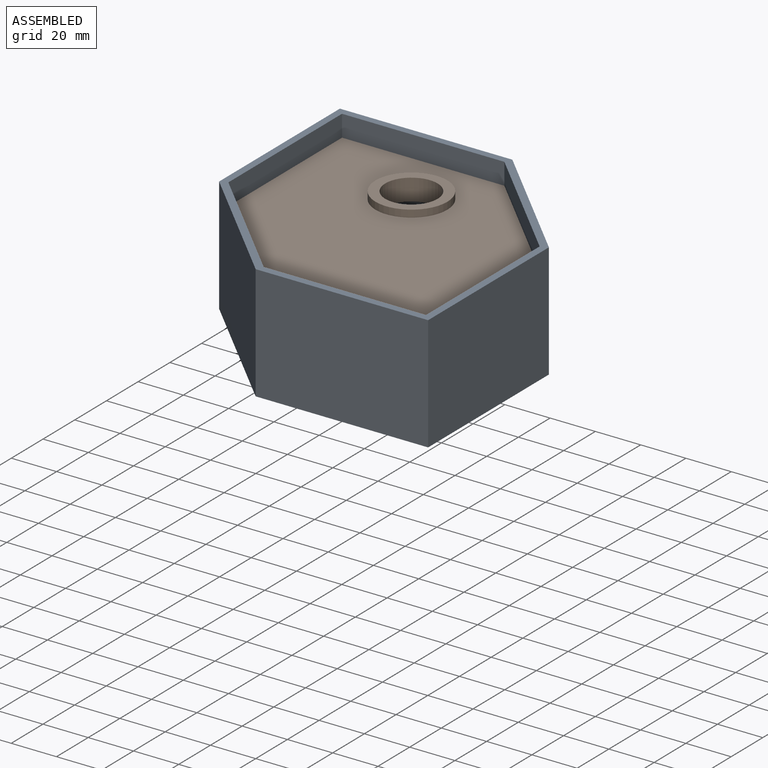
[diagram: assembled view]
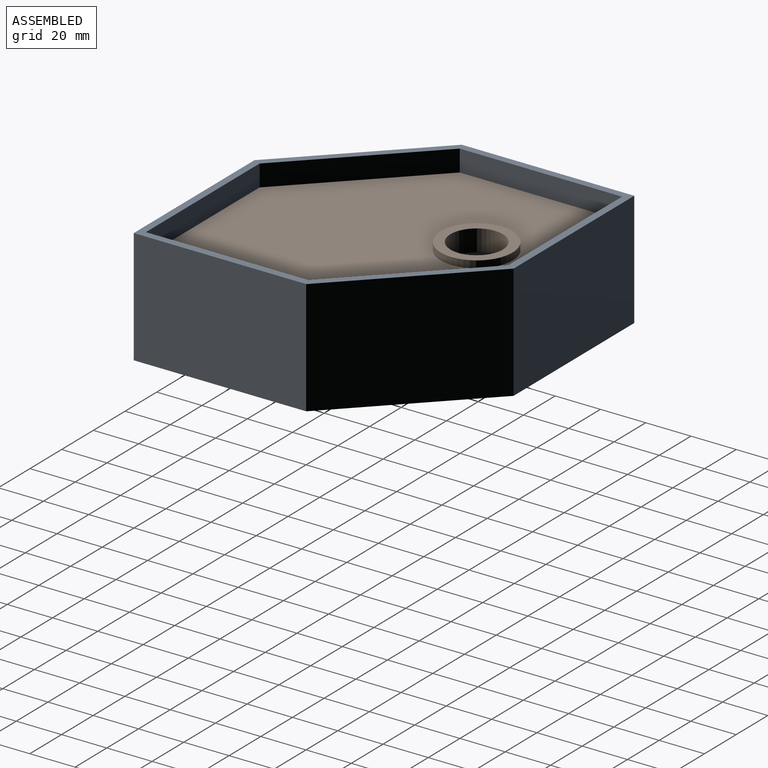
[diagram: assembled view, second angle]
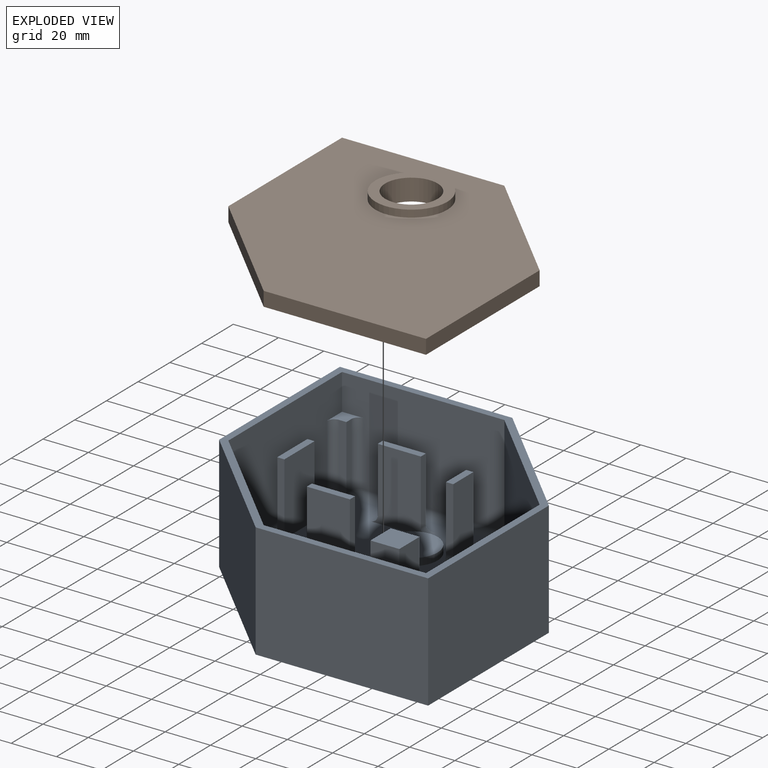
[diagram: exploded view]
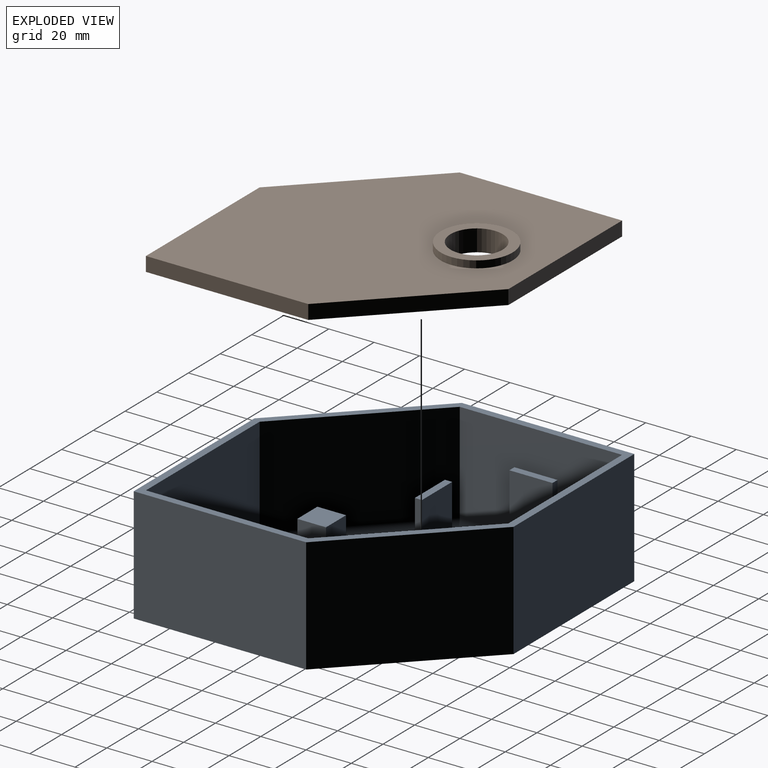
[diagram: exploded view, second angle]
ASSEMBLY  parts=2 mates=3
PART A: 82 faces, bbox 130.1x130.1x50.8 mm
  f0: plane 117.38x117.38mm, normal (0,0,1), area 9875.8mm2, adj f18,f22,f26,f31,f46,f50,f51,f52
  f1: plane 71.71x44.45mm, normal (1,0,0), area 2915.3mm2, adj f3,f11,f14,f45,f66,f68
  f2: plane 71.71x44.45mm, normal (-1,0,0), area 2915.3mm2, adj f3,f12,f13,f42,f48,f50
  f3: plane 130.08x130.08mm, normal (0,0,1), area 1414.7mm2, adj f1,f2,f4,f5,f6,f7,f8,f9
  f4: plane 53.88x53.88mm, normal (-0.71,-0.71,0), area 3871mm2, adj f3,f5,f9,f10
  f5: plane 76.2x50.8mm, normal (0,-1,0), area 3871mm2, adj f3,f4,f6,f10
  f6: plane 76.2x50.8mm, normal (1,0,0), area 3871mm2, adj f3,f5,f7,f10
  f7: plane 53.88x53.88mm, normal (0.71,0.71,0), area 3871mm2, adj f3,f6,f8,f10
  f8: plane 76.2x50.8mm, normal (0,1,0), area 3871mm2, adj f3,f7,f9,f10
  f9: plane 76.2x50.8mm, normal (-1,0,0), area 3871mm2, adj f3,f4,f8,f10
  f10: plane 130.08x130.08mm, normal (0,0,-1), area 14018mm2, adj f4,f5,f6,f7,f8,f9
  f11: plane 52.02x52.02mm, normal (0.71,0.71,0), area 3270.2mm2, adj f1,f3,f12,f64
  f12: plane 71.71x44.45mm, normal (0,1,0), area 2915.3mm2, adj f2,f3,f11,f42,f54,f59
  f13: plane 52.02x52.02mm, normal (-0.71,-0.71,0), area 3270.2mm2, adj f2,f3,f14,f52
  f14: plane 71.71x44.45mm, normal (0,-1,0), area 2915.3mm2, adj f1,f3,f13,f45,f55,f56
  f15: plane 28.58x3.18mm, normal (1,0,0), area 90.7mm2, adj f16,f18,f19,f79
  f16: plane 28.58x19.05mm, normal (0,1,0), area 544.4mm2, adj f15,f17,f19,f81
  f17: plane 28.58x3.18mm, normal (-1,0,0), area 90.7mm2, adj f16,f18,f19,f80
  f18: plane 31.75x25.4mm, normal (0,-1,0), area 609.2mm2, adj f0,f15,f17,f19,f79,f80
  f19: plane 19.05x3.18mm, normal (0,0,1), area 60.5mm2, adj f15,f16,f17,f18
  f20: plane 28.58x19.05mm, normal (0,-1,0), area 544.4mm2, adj f21,f23,f24,f77
  f21: plane 28.58x3.18mm, normal (1,0,0), area 90.7mm2, adj f20,f22,f24,f78
  f22: plane 31.75x25.4mm, normal (0,1,0), area 609.2mm2, adj f0,f21,f23,f24,f76,f78
  f23: plane 28.58x3.18mm, normal (-1,0,0), area 90.7mm2, adj f20,f22,f24,f76
  f24: plane 19.05x3.18mm, normal (0,0,1), area 60.5mm2, adj f20,f21,f22,f23
  f25: plane 28.58x3.18mm, normal (0,-1,0), area 90.7mm2, adj f26,f28,f29,f63
  f26: plane 31.75x25.4mm, normal (1,0,0), area 609.2mm2, adj f0,f25,f27,f29,f61,f63
  f27: plane 28.58x3.18mm, normal (0,1,0), area 90.7mm2, adj f26,f28,f29,f61
  f28: plane 28.58x19.05mm, normal (-1,0,0), area 544.4mm2, adj f25,f27,f29,f62
  f29: plane 19.05x3.18mm, normal (0,0,1), area 60.5mm2, adj f25,f26,f27,f28
  f30: plane 28.58x3.18mm, normal (0,1,0), area 90.7mm2, adj f31,f33,f34,f73
  f31: plane 31.75x19.05mm, normal (-1,0,0), area 407.6mm2, adj f0,f30,f32,f34,f73,f75
  f32: plane 28.58x3.18mm, normal (0,-1,0), area 90.7mm2, adj f31,f33,f34,f75
  f33: plane 28.58x12.7mm, normal (1,0,0), area 362.9mm2, adj f30,f32,f34,f74
  f34: plane 12.7x3.18mm, normal (0,0,1), area 40.3mm2, adj f30,f31,f32,f33
  f35: plane 28.58x12.7mm, normal (-1,0,0), area 362.9mm2, adj f36,f38,f39,f70
  f36: plane 28.58x12.7mm, normal (0,-1,0), area 362.9mm2, adj f35,f37,f39,f72
  f37: plane 28.58x12.7mm, normal (1,0,0), area 362.9mm2, adj f36,f38,f39,f71
  f38: plane 28.58x12.7mm, normal (0,1,0), area 362.9mm2, adj f35,f37,f39,f69
  f39: plane 12.7x12.7mm, normal (0,0,1), area 161.3mm2, adj f35,f36,f37,f38
  f40: plane 28.58x3.18mm, normal (-1,0,0), area 90.7mm2, adj f41,f42,f53,f54
  f41: plane 28.58x3.18mm, normal (0,1,0), area 90.7mm2, adj f40,f42,f48,f51
  f42: plane 9.53x9.53mm, normal (0,0,1), area 44.6mm2, adj f2,f12,f40,f41,f48,f54
  f43: plane 28.58x3.18mm, normal (1,0,0), area 90.7mm2, adj f44,f45,f55,f60
  f44: plane 28.58x3.18mm, normal (0,-1,0), area 90.7mm2, adj f43,f45,f65,f68
  f45: plane 9.53x9.53mm, normal (0,0,1), area 44.6mm2, adj f1,f14,f43,f44,f55,f68
  f46: cylinder r=11.56mm len=23.11mm, axis (0,0,-1), area 230.6mm2, adj f0,f47
  f47: plane 23.11x23.11mm, normal (0,0,1), area 419.6mm2, adj f46
  f48: cylinder r=3.17mm len=28.58mm, axis (0,0,1), area 142.5mm2, adj f2,f41,f42,f49
  f49: sphere r=3.17mm, area 15.8mm2, adj f48,f50,f51
  f50: cylinder r=3.17mm len=62.19mm, axis (0,-1,0), area 307.7mm2, adj f0,f2,f49,f52
  f51: cylinder r=3.17mm len=6.35mm, axis (-1,0,0), area 21.6mm2, adj f0,f41,f49,f53
  f52: cylinder r=3.17mm len=54.27mm, axis (0.71,-0.71,0), area 362.1mm2, adj f0,f13,f50,f56
  f53: cylinder r=3.17mm len=6.35mm, axis (0,-1,0), area 21.6mm2, adj f0,f40,f51,f57
  f54: cylinder r=3.17mm len=28.58mm, axis (0,0,-1), area 142.5mm2, adj f12,f40,f42,f57
  f55: cylinder r=3.17mm len=28.58mm, axis (0,0,-1), area 142.5mm2, adj f14,f43,f45,f58
  f56: cylinder r=3.17mm len=62.19mm, axis (1,0,0), area 307.7mm2, adj f0,f14,f52,f58
  f57: sphere r=3.17mm, area 15.8mm2, adj f53,f54,f59
  f58: sphere r=3.17mm, area 15.8mm2, adj f55,f56,f60
  f59: cylinder r=3.17mm len=62.19mm, axis (-1,0,0), area 307.7mm2, adj f0,f12,f57,f64
  f60: cylinder r=3.17mm len=6.35mm, axis (0,1,0), area 21.6mm2, adj f0,f43,f58,f65
  f61: cylinder r=3.17mm len=4.75mm, axis (-1,0,0), area 19mm2, adj f0,f26,f27,f62,f66
  f62: cylinder r=3.17mm len=22.19mm, axis (0,-1,0), area 66.5mm2, adj f28,f61,f63,f66
  f63: cylinder r=3.17mm len=4.75mm, axis (1,0,0), area 19mm2, adj f0,f25,f26,f62,f66
  f64: cylinder r=3.17mm len=54.27mm, axis (-0.71,0.71,0), area 362.1mm2, adj f0,f11,f59,f66
  f65: cylinder r=3.17mm len=6.35mm, axis (1,0,0), area 21.6mm2, adj f0,f44,f60,f67
  f66: cylinder r=3.17mm len=62.19mm, axis (0,1,0), area 267.8mm2, adj f0,f1,f61,f62,f63,f64,f67
  f67: sphere r=3.17mm, area 15.8mm2, adj f65,f66,f68
  f68: cylinder r=3.17mm len=28.58mm, axis (0,0,1), area 142.5mm2, adj f1,f44,f45,f67
  f69: cylinder r=3.17mm len=19.05mm, axis (-1,0,0), area 74.8mm2, adj f0,f38,f70,f71
  f70: cylinder r=3.17mm len=19.05mm, axis (0,-1,0), area 74.8mm2, adj f0,f35,f69,f72
  f71: cylinder r=3.17mm len=19.05mm, axis (0,1,0), area 74.8mm2, adj f0,f37,f69,f72
  f72: cylinder r=3.17mm len=19.05mm, axis (1,0,0), area 74.8mm2, adj f0,f36,f70,f71
  f73: cylinder r=3.17mm len=6.35mm, axis (-1,0,0), area 21.6mm2, adj f0,f30,f31,f74
  f74: cylinder r=3.17mm len=19.05mm, axis (0,1,0), area 74.8mm2, adj f0,f33,f73,f75
  f75: cylinder r=3.17mm len=6.35mm, axis (1,0,0), area 21.6mm2, adj f0,f31,f32,f74
  f76: cylinder r=3.17mm len=6.35mm, axis (0,-1,0), area 21.6mm2, adj f0,f22,f23,f77
  f77: cylinder r=3.17mm len=25.4mm, axis (1,0,0), area 106.5mm2, adj f0,f20,f76,f78
  f78: cylinder r=3.17mm len=6.35mm, axis (0,1,0), area 21.6mm2, adj f0,f21,f22,f77
  f79: cylinder r=3.17mm len=6.35mm, axis (0,1,0), area 21.6mm2, adj f0,f15,f18,f81
  f80: cylinder r=3.17mm len=6.35mm, axis (0,-1,0), area 21.6mm2, adj f0,f17,f18,f81
  f81: cylinder r=3.17mm len=25.4mm, axis (-1,0,0), area 106.5mm2, adj f0,f16,f79,f80
PART B: 11 faces, bbox 123.7x123.7x9.5 mm
  f0: plane 71.71x6.35mm, normal (-1,0,0), area 455.4mm2, adj f1,f5,f6,f7
  f1: plane 52.02x52.02mm, normal (-0.71,-0.71,0), area 467.2mm2, adj f0,f2,f6,f7
  f2: plane 71.71x6.35mm, normal (0,-1,0), area 455.4mm2, adj f1,f3,f6,f7
  f3: plane 71.71x6.35mm, normal (1,0,0), area 455.4mm2, adj f2,f4,f6,f7
  f4: plane 52.02x52.02mm, normal (0.71,0.71,0), area 467.2mm2, adj f3,f5,f6,f7
  f5: plane 71.71x6.35mm, normal (0,1,0), area 455.4mm2, adj f0,f4,f6,f7
  f6: plane 123.73x123.73mm, normal (0,0,1), area 11811.5mm2, adj f0,f1,f2,f3,f4,f5,f9
  f7: plane 123.73x123.73mm, normal (0,0,-1), area 12183.6mm2, adj f0,f1,f2,f3,f4,f5,f8
  f8: cylinder r=11.56mm len=23.11mm, axis (0,0,1), area 691.7mm2, adj f7,f10
  f9: cylinder r=15.88mm len=31.75mm, axis (0,0,-1), area 316.7mm2, adj f6,f10
  f10: plane 31.75x31.75mm, normal (0,0,1), area 372.1mm2, adj f8,f9
PLACE A t=(-167.57,27.92,24.12)mm
PLACE B t=(-167.57,27.92,59.04)mm
MATE planar B.f7 <-> A.f39  axis (0,0,-1) through (-156.03,91.82,59.04)mm
MATE planar B.f2 <-> A.f12  axis (0,-1,0) through (-130.4,31.1,62.22)mm
MATE planar B.f0 <-> A.f1  axis (-1,0,0) through (-218.28,118.97,62.22)mm
